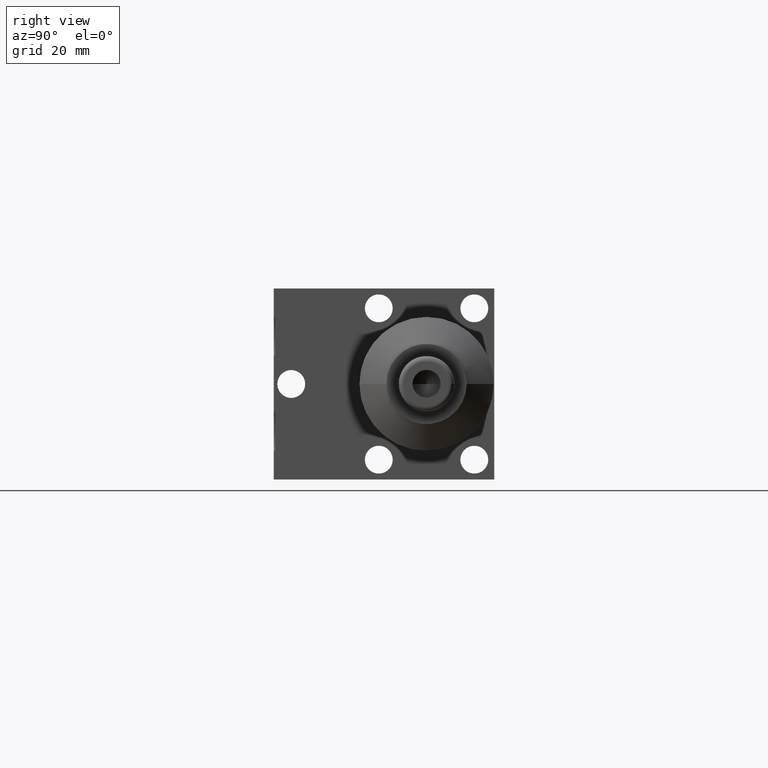
[diagram: clean part render]
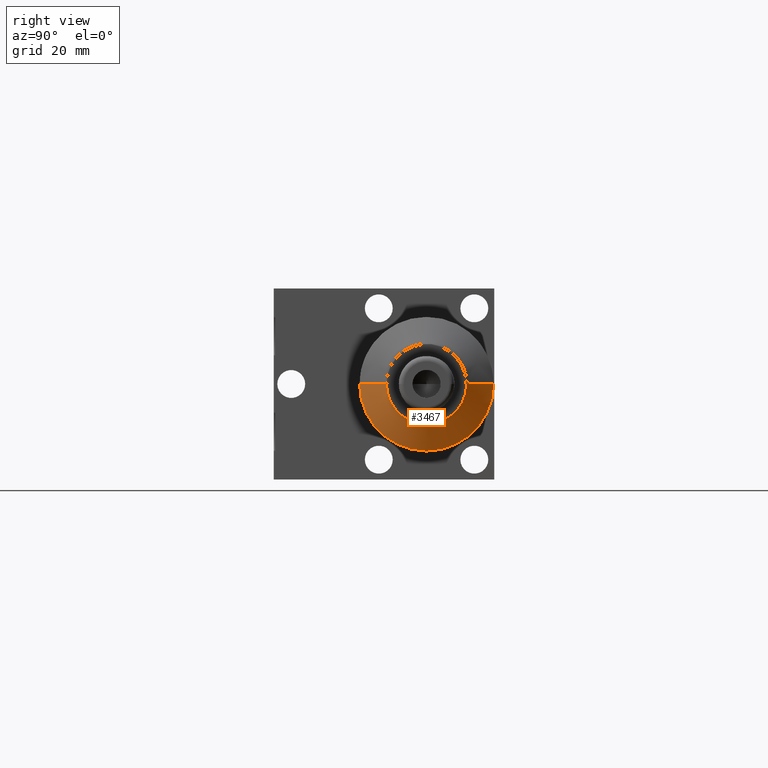
[diagram: same view with one face highlighted and labeled with its STEP entity id]
A machine part, right view. The second image highlights one B-rep face of the part: STEP entity #3467.
In plain terms, the highlighted conical surface has half-angle 60 deg.
Its self-contained STEP definition (entity closure, byte-faithful):
#542=CARTESIAN_POINT('',(1.805E0,0.E0,0.E0));
#543=DIRECTION('',(-1.E0,0.E0,0.E0));
#544=DIRECTION('',(0.E0,1.E0,0.E0));
#545=AXIS2_PLACEMENT_3D('',#542,#543,#544);
#574=CARTESIAN_POINT('',(1.683179093201E0,0.E0,0.E0));
#575=DIRECTION('',(1.E0,0.E0,0.E0));
#576=DIRECTION('',(0.E0,0.E0,-1.E0));
#577=AXIS2_PLACEMENT_3D('',#574,#575,#576);
#582=CARTESIAN_POINT('',(1.683179093201E0,0.E0,0.E0));
#583=DIRECTION('',(1.E0,0.E0,0.E0));
#584=DIRECTION('',(0.E0,-1.E0,0.E0));
#585=AXIS2_PLACEMENT_3D('',#582,#583,#584);
#590=DIRECTION('',(5.E-1,8.660254037844E-1,0.E0));
#591=VECTOR('',#590,2.436418135980E-1);
#592=CARTESIAN_POINT('',(1.683179093201E0,-5.26E-1,0.E0));
#593=LINE('',#592,#591);
#613=DIRECTION('',(5.E-1,-8.660254037844E-1,0.E0));
#614=VECTOR('',#613,2.436418135980E-1);
#615=CARTESIAN_POINT('',(1.683179093201E0,5.26E-1,0.E0));
#616=LINE('',#615,#614);
#2732=CARTESIAN_POINT('',(1.805E0,3.15E-1,0.E0));
#2733=CARTESIAN_POINT('',(1.805E0,-3.15E-1,0.E0));
#2734=VERTEX_POINT('',#2732);
#2735=VERTEX_POINT('',#2733);
#2736=CARTESIAN_POINT('',(1.683179093201E0,-5.26E-1,0.E0));
#2737=CARTESIAN_POINT('',(1.683179093201E0,0.E0,-5.26E-1));
#2738=VERTEX_POINT('',#2736);
#2739=VERTEX_POINT('',#2737);
#2742=CARTESIAN_POINT('',(1.683179093201E0,5.26E-1,0.E0));
#2743=VERTEX_POINT('',#2742);
#3451=CARTESIAN_POINT('',(1.744089546600E0,0.E0,0.E0));
#3452=DIRECTION('',(-1.E0,0.E0,0.E0));
#3453=DIRECTION('',(0.E0,1.E0,0.E0));
#3454=AXIS2_PLACEMENT_3D('',#3451,#3452,#3453);
#3455=CONICAL_SURFACE('',#3454,4.205E-1,6.E1);
#3456=ORIENTED_EDGE('',*,*,#3440,.F.);
#3458=ORIENTED_EDGE('',*,*,#3457,.F.);
#3460=ORIENTED_EDGE('',*,*,#3459,.F.);
#3462=ORIENTED_EDGE('',*,*,#3461,.F.);
#3464=ORIENTED_EDGE('',*,*,#3463,.T.);
#3465=EDGE_LOOP('',(#3456,#3458,#3460,#3462,#3464));
#3466=FACE_OUTER_BOUND('',#3465,.F.);
#546=CIRCLE('',#545,3.15E-1);
#578=CIRCLE('',#577,5.26E-1);
#586=CIRCLE('',#585,5.26E-1);
#3440=EDGE_CURVE('',#2734,#2735,#546,.T.);
#3457=EDGE_CURVE('',#2743,#2734,#616,.T.);
#3459=EDGE_CURVE('',#2739,#2743,#578,.T.);
#3461=EDGE_CURVE('',#2738,#2739,#586,.T.);
#3463=EDGE_CURVE('',#2738,#2735,#593,.T.);
#3467=ADVANCED_FACE('',(#3466),#3455,.T.);